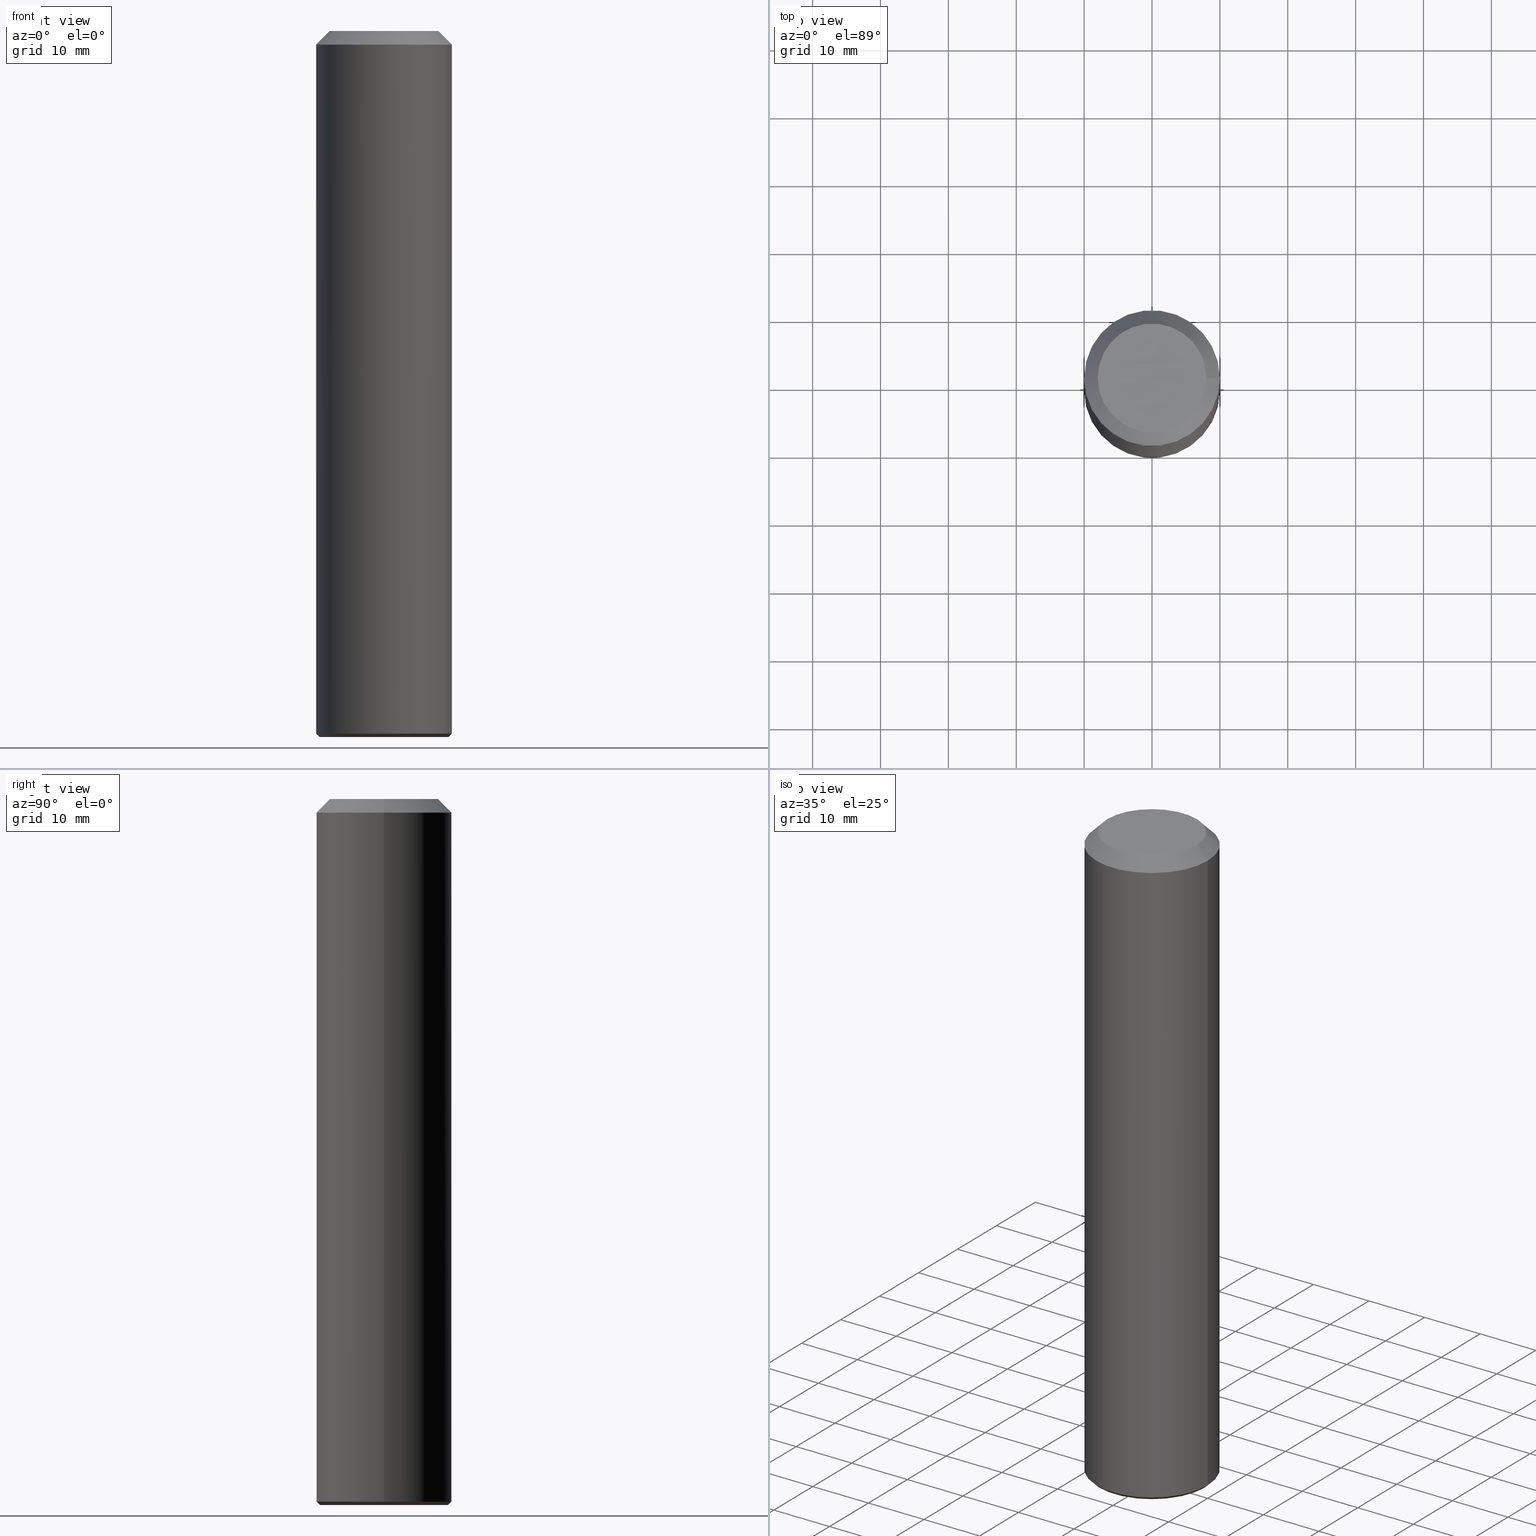
[diagram: canonical four-view strip — front | top / right | iso, engineering-drawing reading convention]
A machine part, canonical four-view strip (front | top / right | iso — engineering-drawing reading convention). The complete STEP part file that produces these views, byte-faithful:
ISO-10303-21;
HEADER;
FILE_DESCRIPTION (( 'STEP AP203' ),
    '1' );
FILE_NAME ('735.200.00.STEP',
    '2019-01-08T23:45:43',
    ( '' ),
    ( '' ),
    'SwSTEP 2.0',
    'SolidWorks 2019',
    '' );
FILE_SCHEMA (( 'CONFIG_CONTROL_DESIGN' ));
ENDSEC;

DATA;
#1 = ORIENTED_EDGE ( 'NONE', *, *, #77, .T. ) ;
#2 = DESIGN_CONTEXT ( 'detailed design', #16, 'design' ) ;
#3 = ORIENTED_EDGE ( 'NONE', *, *, #176, .T. ) ;
#4 = PERSON_AND_ORGANIZATION_ROLE ( 'classification_officer' ) ;
#5 = FACE_OUTER_BOUND ( 'NONE', #179, .T. ) ;
#6 = DATE_AND_TIME ( #35, #101 ) ;
#7 = CARTESIAN_POINT ( 'NONE',  ( 0.0000000000000000000, 0.0000000000000000000, 0.0000000000000000000 ) ) ;
#8 = CIRCLE ( 'NONE', #45, 9.499999999999994671 ) ;
#9 = DIRECTION ( 'NONE',  ( -7.337712398762083409E-15, 0.0000000000000000000, -1.000000000000000000 ) ) ;
#10 = FACE_OUTER_BOUND ( 'NONE', #208, .T. ) ;
#11 = ADVANCED_FACE ( 'NONE', ( #215, #202 ), #139, .T. ) ;
#12 = EDGE_CURVE ( 'NONE', #137, #137, #170, .T. ) ;
#13 = PERSON_AND_ORGANIZATION_ROLE ( 'creator' ) ;
#14 = CARTESIAN_POINT ( 'NONE',  ( 7.999999999999992895, 0.0000000000000000000, -5.586370142149008320E-14 ) ) ;
#15 = CARTESIAN_POINT ( 'NONE',  ( -9.500000000000733635, 0.0000000000000000000, -103.9999999999999289 ) ) ;
#16 = APPLICATION_CONTEXT ( 'configuration controlled 3d designs of mechanical parts and assemblies' ) ;
#17 = AXIS2_PLACEMENT_3D ( 'NONE', #38, #196, #204 ) ;
#18 = EDGE_LOOP ( 'NONE', ( #141 ) ) ;
#19 = ORIENTED_EDGE ( 'NONE', *, *, #175, .T. ) ;
#20 = EDGE_LOOP ( 'NONE', ( #89 ) ) ;
#21 = AXIS2_PLACEMENT_3D ( 'NONE', #112, #44, #79 ) ;
#22 = CC_DESIGN_PERSON_AND_ORGANIZATION_ASSIGNMENT ( #122, #13, ( #205 ) ) ;
#23 = EDGE_LOOP ( 'NONE', ( #181 ) ) ;
#24 = FACE_OUTER_BOUND ( 'NONE', #109, .T. ) ;
#25 = COORDINATED_UNIVERSAL_TIME_OFFSET ( 1, 0, .AHEAD. ) ;
#26 = DIRECTION ( 'NONE',  ( -6.982962677686267499E-15, -0.0000000000000000000, -1.000000000000000000 ) ) ;
#27 = PRODUCT_DEFINITION_SHAPE ( 'NONE', 'NONE',  #205 ) ;
#28 = DIRECTION ( 'NONE',  ( 6.982962677686266711E-15, 0.0000000000000000000, 1.000000000000000000 ) ) ;
#29 = DIRECTION ( 'NONE',  ( 6.982962677686266711E-15, 0.0000000000000000000, 1.000000000000000000 ) ) ;
#30 = FACE_OUTER_BOUND ( 'NONE', #49, .T. ) ;
#31 = ADVANCED_FACE ( 'NONE', ( #10 ), #167, .T. ) ;
#32 = VERTEX_POINT ( 'NONE', #14 ) ;
#33 = AXIS2_PLACEMENT_3D ( 'NONE', #110, #131, #75 ) ;
#34 = DATE_AND_TIME ( #46, #140 ) ;
#35 = CALENDAR_DATE ( 2019, 9, 1 ) ;
#36 = COORDINATED_UNIVERSAL_TIME_OFFSET ( 1, 0, .AHEAD. ) ;
#37 = ADVANCED_FACE ( 'NONE', ( #64 ), #42, .T. ) ;
#38 = CARTESIAN_POINT ( 'NONE',  ( -7.396592199242181741E-13, 0.0000000000000000000, -104.0000000000000000 ) ) ;
#39 = PERSON_AND_ORGANIZATION_ROLE ( 'design_owner' ) ;
#40 = APPROVAL_STATUS ( 'not_yet_approved' ) ;
#41 = FACE_BOUND ( 'NONE', #23, .T. ) ;
#42 = PLANE ( 'NONE',  #65 ) ;
#43 = DIRECTION ( 'NONE',  ( -1.000000000000000000, 0.0000000000000000000, 7.304098846218139203E-15 ) ) ;
#44 = DIRECTION ( 'NONE',  ( 7.102166654756253620E-15, -0.0000000000000000000, 1.000000000000000000 ) ) ;
#45 = AXIS2_PLACEMENT_3D ( 'NONE', #66, #203, #43 ) ;
#46 = CALENDAR_DATE ( 2019, 9, 1 ) ;
#47 = AXIS2_PLACEMENT_3D ( 'NONE', #7, #76, #62 ) ;
#48 = CC_DESIGN_APPROVAL ( #120, ( #171 ) ) ;
#49 = EDGE_LOOP ( 'NONE', ( #211 ) ) ;
#50 = ADVANCED_FACE ( 'NONE', ( #186, #150 ), #129, .T. ) ;
#51 = PRODUCT_RELATED_PRODUCT_CATEGORY ( 'detail', '', ( #61 ) ) ;
#52 = CARTESIAN_POINT ( 'NONE',  ( 0.0000000000000000000, 0.0000000000000000000, 0.0000000000000000000 ) ) ;
#53 = ORIENTED_EDGE ( 'NONE', *, *, #158, .F. ) ;
#54 = CLOSED_SHELL ( 'NONE', ( #190, #188, #11, #138 ) ) ;
#55 = ORIENTED_EDGE ( 'NONE', *, *, #176, .F. ) ;
#56 = ORIENTED_EDGE ( 'NONE', *, *, #158, .T. ) ;
#57 = CIRCLE ( 'NONE', #74, 7.999999999999992895 ) ;
#58 = PERSON_AND_ORGANIZATION ( #63, #78 ) ;
#59 = CARTESIAN_POINT ( 'NONE',  ( -4.608755367272936534E-13, 0.0000000000000000000, -66.00000000000000000 ) ) ;
#60 = APPROVAL_STATUS ( 'not_yet_approved' ) ;
#61 = PRODUCT ( '735.200.00', '735.200.00', '', ( #72 ) ) ;
#62 = DIRECTION ( 'NONE',  ( -1.000000000000000000, 0.0000000000000000000, 6.982962677686266711E-15 ) ) ;
#63 = PERSON ( 'UNSPECIFIED', 'UNSPECIFIED', 'UNSPECIFIED', ('UNSPECIFIED'), ('UNSPECIFIED'), ('UNSPECIFIED') ) ;
#64 = FACE_OUTER_BOUND ( 'NONE', #20, .T. ) ;
#65 = AXIS2_PLACEMENT_3D ( 'NONE', #152, #115, #165 ) ;
#66 = CARTESIAN_POINT ( 'NONE',  ( -7.396592199242181741E-13, 0.0000000000000000000, -104.0000000000000000 ) ) ;
#67 = APPROVAL_DATE_TIME ( #91, #198 ) ;
#68 = ADVANCED_FACE ( 'NONE', ( #95, #41 ), #194, .T. ) ;
#69 = DIRECTION ( 'NONE',  ( 1.000000000000000000, 0.0000000000000000000, -6.938893903907228378E-15 ) ) ;
#70 = CC_DESIGN_SECURITY_CLASSIFICATION ( #98, ( #171 ) ) ;
#71 = CALENDAR_DATE ( 2019, 9, 1 ) ;
#72 = MECHANICAL_CONTEXT ( 'NONE', #87, 'mechanical' ) ;
#73 = ORIENTED_EDGE ( 'NONE', *, *, #77, .F. ) ;
#74 = AXIS2_PLACEMENT_3D ( 'NONE', #117, #29, #96 ) ;
#75 = DIRECTION ( 'NONE',  ( 1.000000000000000000, 0.0000000000000000000, -6.982962677686266711E-15 ) ) ;
#76 = DIRECTION ( 'NONE',  ( -6.982962677686266711E-15, 0.0000000000000000000, -1.000000000000000000 ) ) ;
#77 = EDGE_CURVE ( 'NONE', #173, #173, #97, .T. ) ;
#78 = ORGANIZATION ( 'UNSPECIFIED', 'UNSPECIFIED', '' ) ;
#79 = DIRECTION ( 'NONE',  ( 1.000000000000000000, 0.0000000000000000000, -7.102166654756253620E-15 ) ) ;
#80 = CLOSED_SHELL ( 'NONE', ( #50, #31, #68, #37 ) ) ;
#81 = VERTEX_POINT ( 'NONE', #82 ) ;
#82 = CARTESIAN_POINT ( 'NONE',  ( 9.999999999999538147, 0.0000000000000000000, -66.00000000000007105 ) ) ;
#83 =( LENGTH_UNIT ( ) NAMED_UNIT ( * ) SI_UNIT ( .MILLI., .METRE. ) );
#84 = PERSON_AND_ORGANIZATION ( #63, #78 ) ;
#85 = LOCAL_TIME ( 0, 45, 43.00000000000000000, #183 ) ;
#86 = EDGE_LOOP ( 'NONE', ( #53 ) ) ;
#87 = APPLICATION_CONTEXT ( 'configuration controlled 3d designs of mechanical parts and assemblies' ) ;
#88 = ORIENTED_EDGE ( 'NONE', *, *, #100, .F. ) ;
#89 = ORIENTED_EDGE ( 'NONE', *, *, #12, .T. ) ;
#90 = APPROVAL_ROLE ( '' ) ;
#91 = DATE_AND_TIME ( #151, #166 ) ;
#92 = APPLICATION_PROTOCOL_DEFINITION ( 'international standard', 'config_control_design', 1994, #16 ) ;
#93 = DIRECTION ( 'NONE',  ( 1.000000000000000000, 0.0000000000000000000, -6.938893903907228378E-15 ) ) ;
#94 = DATE_TIME_ROLE ( 'classification_date' ) ;
#95 = FACE_OUTER_BOUND ( 'NONE', #192, .T. ) ;
#96 = DIRECTION ( 'NONE',  ( 1.000000000000000000, 0.0000000000000000000, -6.982962677686266711E-15 ) ) ;
#97 = CIRCLE ( 'NONE', #145, 10.00000000000000533 ) ;
#98 = SECURITY_CLASSIFICATION ( '', '', #164 ) ;
#99 = DIRECTION ( 'NONE',  ( -6.982962677686267499E-15, -0.0000000000000000000, -1.000000000000000000 ) ) ;
#100 = EDGE_CURVE ( 'NONE', #220, #220, #8, .T. ) ;
#101 = LOCAL_TIME ( 0, 45, 43.00000000000000000, #36 ) ;
#102 = DIRECTION ( 'NONE',  ( 0.0000000000000000000, 0.0000000000000000000, 1.000000000000000000 ) ) ;
#103 = VERTEX_POINT ( 'NONE', #206 ) ;
#104 = COORDINATED_UNIVERSAL_TIME_OFFSET ( 1, 0, .AHEAD. ) ;
#105 = AXIS2_PLACEMENT_3D ( 'NONE', #191, #157, #154 ) ;
#106 = EDGE_LOOP ( 'NONE', ( #88 ) ) ;
#107 = CC_DESIGN_APPROVAL ( #159, ( #205 ) ) ;
#108 = DATE_AND_TIME ( #207, #168 ) ;
#109 = EDGE_LOOP ( 'NONE', ( #73 ) ) ;
#110 = CARTESIAN_POINT ( 'NONE',  ( -3.326488793394202502E-30, 0.0000000000000000000, -4.763721284124635757E-16 ) ) ;
#111 = APPROVAL_ROLE ( '' ) ;
#112 = CARTESIAN_POINT ( 'NONE',  ( -7.396592199242181741E-13, 0.0000000000000000000, -104.0000000000000000 ) ) ;
#113 = COORDINATED_UNIVERSAL_TIME_OFFSET ( 1, 0, .AHEAD. ) ;
#114 = APPROVAL_PERSON_ORGANIZATION ( #126, #159, #90 ) ;
#115 = DIRECTION ( 'NONE',  ( -6.982962677686266711E-15, 0.0000000000000000000, -1.000000000000000000 ) ) ;
#116 = DIRECTION ( 'NONE',  ( 6.982962677686266711E-15, 0.0000000000000000000, 1.000000000000000000 ) ) ;
#117 = CARTESIAN_POINT ( 'NONE',  ( 0.0000000000000000000, 0.0000000000000000000, 0.0000000000000000000 ) ) ;
#118 = AXIS2_PLACEMENT_3D ( 'NONE', #214, #128, #133 ) ;
#119 = CC_DESIGN_DATE_AND_TIME_ASSIGNMENT ( #108, #148, ( #205 ) ) ;
#120 = APPROVAL ( #40, 'UNSPECIFIED' ) ;
#121 = AXIS2_PLACEMENT_3D ( 'NONE', #200, #28, #69 ) ;
#122 = PERSON_AND_ORGANIZATION ( #63, #78 ) ;
#123 = DIRECTION ( 'NONE',  ( 1.000000000000000000, 0.0000000000000000000, 0.0000000000000000000 ) ) ;
#124 = EDGE_LOOP ( 'NONE', ( #1 ) ) ;
#125 = PERSON_AND_ORGANIZATION_ROLE ( 'creator' ) ;
#126 = PERSON_AND_ORGANIZATION ( #63, #78 ) ;
#127 = CIRCLE ( 'NONE', #184, 10.00000000000000000 ) ;
#128 = DIRECTION ( 'NONE',  ( 6.982962677686266711E-15, 0.0000000000000000000, 1.000000000000000000 ) ) ;
#129 = CYLINDRICAL_SURFACE ( 'NONE', #121, 10.00000000000000000 ) ;
#130 = SHAPE_DEFINITION_REPRESENTATION ( #27, #162 ) ;
#131 = DIRECTION ( 'NONE',  ( 6.982962677686266711E-15, 0.0000000000000000000, 1.000000000000000000 ) ) ;
#132 = CC_DESIGN_PERSON_AND_ORGANIZATION_ASSIGNMENT ( #209, #174, ( #171 ) ) ;
#133 = DIRECTION ( 'NONE',  ( 1.000000000000000000, 0.0000000000000000000, -6.938893903907228378E-15 ) ) ;
#134 = APPROVAL_DATE_TIME ( #34, #159 ) ;
#135 = FACE_OUTER_BOUND ( 'NONE', #163, .T. ) ;
#136 = DATE_AND_TIME ( #71, #85 ) ;
#137 = VERTEX_POINT ( 'NONE', #172 ) ;
#138 = ADVANCED_FACE ( 'NONE', ( #30 ), #146, .F. ) ;
#139 = CONICAL_SURFACE ( 'NONE', #17, 9.499999999999994671, 0.7853981633974447263 ) ;
#140 = LOCAL_TIME ( 0, 45, 43.00000000000000000, #113 ) ;
#141 = ORIENTED_EDGE ( 'NONE', *, *, #12, .F. ) ;
#142 = APPROVAL_DATE_TIME ( #136, #120 ) ;
#143 = MANIFOLD_SOLID_BREP ( 'K�rper in Z minus drehen[1]', #54 ) ;
#144 = CC_DESIGN_DATE_AND_TIME_ASSIGNMENT ( #6, #94, ( #98 ) ) ;
#145 = AXIS2_PLACEMENT_3D ( 'NONE', #169, #9, #217 ) ;
#146 = PLANE ( 'NONE',  #21 ) ;
#147 = AXIS2_PLACEMENT_3D ( 'NONE', #59, #26, #93 ) ;
#148 = DATE_TIME_ROLE ( 'creation_date' ) ;
#149 = CYLINDRICAL_SURFACE ( 'NONE', #118, 10.00000000000000000 ) ;
#150 = FACE_OUTER_BOUND ( 'NONE', #86, .T. ) ;
#151 = CALENDAR_DATE ( 2019, 9, 1 ) ;
#152 = CARTESIAN_POINT ( 'NONE',  ( -4.608755367272936534E-13, 0.0000000000000000000, -66.00000000000000000 ) ) ;
#153 = CC_DESIGN_PERSON_AND_ORGANIZATION_ASSIGNMENT ( #223, #125, ( #171 ) ) ;
#154 = DIRECTION ( 'NONE',  ( -1.000000000000000000, 0.0000000000000000000, 6.982962677686266711E-15 ) ) ;
#155 = CIRCLE ( 'NONE', #178, 10.00000000000000000 ) ;
#156 = CARTESIAN_POINT ( 'NONE',  ( -10.00000000000074074, 0.0000000000000000000, -103.4999999999999147 ) ) ;
#157 = DIRECTION ( 'NONE',  ( -6.982962677686266711E-15, 0.0000000000000000000, -1.000000000000000000 ) ) ;
#158 = EDGE_CURVE ( 'NONE', #103, #103, #155, .T. ) ;
#159 = APPROVAL ( #193, 'UNSPECIFIED' ) ;
#160 = APPROVAL_PERSON_ORGANIZATION ( #201, #198, #197 ) ;
#161 = PERSON_AND_ORGANIZATION ( #63, #78 ) ;
#162 = ADVANCED_BREP_SHAPE_REPRESENTATION ( '735.200.00', ( #143, #216, #177 ), #210 ) ;
#163 = EDGE_LOOP ( 'NONE', ( #55 ) ) ;
#164 = SECURITY_CLASSIFICATION_LEVEL ( 'unclassified' ) ;
#165 = DIRECTION ( 'NONE',  ( -1.000000000000000000, 0.0000000000000000000, 6.982962677686266711E-15 ) ) ;
#166 = LOCAL_TIME ( 0, 45, 43.00000000000000000, #25 ) ;
#167 = PLANE ( 'NONE',  #33 ) ;
#168 = LOCAL_TIME ( 0, 45, 43.00000000000000000, #104 ) ;
#169 = CARTESIAN_POINT ( 'NONE',  ( -7.359903637248369730E-13, 0.0000000000000000000, -103.4999999999999858 ) ) ;
#170 = CIRCLE ( 'NONE', #147, 10.00000000000000000 ) ;
#171 = PRODUCT_DEFINITION_FORMATION_WITH_SPECIFIED_SOURCE ( 'ANY', '', #61, .NOT_KNOWN. ) ;
#172 = CARTESIAN_POINT ( 'NONE',  ( 9.999999999999538147, 0.0000000000000000000, -66.00000000000007105 ) ) ;
#173 = VERTEX_POINT ( 'NONE', #156 ) ;
#174 = PERSON_AND_ORGANIZATION_ROLE ( 'design_supplier' ) ;
#175 = EDGE_CURVE ( 'NONE', #32, #32, #57, .T. ) ;
#176 = EDGE_CURVE ( 'NONE', #81, #81, #127, .T. ) ;
#177 = AXIS2_PLACEMENT_3D ( 'NONE', #52, #102, #123 ) ;
#178 = AXIS2_PLACEMENT_3D ( 'NONE', #213, #116, #187 ) ;
#179 = EDGE_LOOP ( 'NONE', ( #3 ) ) ;
#180 =( NAMED_UNIT ( * ) SI_UNIT ( $, .STERADIAN. ) SOLID_ANGLE_UNIT ( ) );
#181 = ORIENTED_EDGE ( 'NONE', *, *, #175, .F. ) ;
#182 = DIRECTION ( 'NONE',  ( 1.000000000000000000, 0.0000000000000000000, -6.938893903907228378E-15 ) ) ;
#183 = COORDINATED_UNIVERSAL_TIME_OFFSET ( 1, 0, .AHEAD. ) ;
#184 = AXIS2_PLACEMENT_3D ( 'NONE', #189, #99, #182 ) ;
#185 = CC_DESIGN_APPROVAL ( #198, ( #98 ) ) ;
#186 = FACE_OUTER_BOUND ( 'NONE', #18, .T. ) ;
#187 = DIRECTION ( 'NONE',  ( 1.000000000000000000, 0.0000000000000000000, -6.982261990806648555E-15 ) ) ;
#188 = ADVANCED_FACE ( 'NONE', ( #24, #5 ), #149, .T. ) ;
#189 = CARTESIAN_POINT ( 'NONE',  ( -4.608755367272936534E-13, 0.0000000000000000000, -66.00000000000000000 ) ) ;
#190 = ADVANCED_FACE ( 'NONE', ( #135 ), #222, .F. ) ;
#191 = CARTESIAN_POINT ( 'NONE',  ( -4.608755367272936534E-13, 0.0000000000000000000, -66.00000000000000000 ) ) ;
#192 = EDGE_LOOP ( 'NONE', ( #56 ) ) ;
#193 = APPROVAL_STATUS ( 'not_yet_approved' ) ;
#194 = CONICAL_SURFACE ( 'NONE', #47, 7.999999999999992895, 0.7853981633974496113 ) ;
#195 = APPROVAL_PERSON_ORGANIZATION ( #58, #120, #111 ) ;
#196 = DIRECTION ( 'NONE',  ( 7.337712398762083409E-15, 0.0000000000000000000, 1.000000000000000000 ) ) ;
#197 = APPROVAL_ROLE ( '' ) ;
#198 = APPROVAL ( #60, 'UNSPECIFIED' ) ;
#199 = CC_DESIGN_PERSON_AND_ORGANIZATION_ASSIGNMENT ( #161, #39, ( #61 ) ) ;
#200 = CARTESIAN_POINT ( 'NONE',  ( -7.262281184793717379E-13, 0.0000000000000000000, -104.0000000000000000 ) ) ;
#201 = PERSON_AND_ORGANIZATION ( #63, #78 ) ;
#202 = FACE_BOUND ( 'NONE', #106, .T. ) ;
#203 = DIRECTION ( 'NONE',  ( -7.337712398762083409E-15, 0.0000000000000000000, -1.000000000000000000 ) ) ;
#204 = DIRECTION ( 'NONE',  ( 1.000000000000000000, 0.0000000000000000000, -7.304098846218139203E-15 ) ) ;
#205 = PRODUCT_DEFINITION ( 'UNKNOWN', '', #171, #2 ) ;
#206 = CARTESIAN_POINT ( 'NONE',  ( 9.999999999999985789, 0.0000000000000000000, -2.000000000000071498 ) ) ;
#207 = CALENDAR_DATE ( 2019, 9, 1 ) ;
#208 = EDGE_LOOP ( 'NONE', ( #19 ) ) ;
#209 = PERSON_AND_ORGANIZATION ( #63, #78 ) ;
#210 =( GEOMETRIC_REPRESENTATION_CONTEXT ( 3 ) GLOBAL_UNCERTAINTY_ASSIGNED_CONTEXT ( ( #212 ) ) GLOBAL_UNIT_ASSIGNED_CONTEXT ( ( #83, #221, #180 ) ) REPRESENTATION_CONTEXT ( 'NONE', 'WORKASPACE' ) );
#211 = ORIENTED_EDGE ( 'NONE', *, *, #100, .T. ) ;
#212 = UNCERTAINTY_MEASURE_WITH_UNIT (LENGTH_MEASURE( 1.000000000000000082E-05 ), #83, 'distance_accuracy_value', 'NONE');
#213 = CARTESIAN_POINT ( 'NONE',  ( -1.396592535537254604E-14, 0.0000000000000000000, -2.000000000000001776 ) ) ;
#214 = CARTESIAN_POINT ( 'NONE',  ( -7.262281184793717379E-13, 0.0000000000000000000, -104.0000000000000000 ) ) ;
#215 = FACE_OUTER_BOUND ( 'NONE', #124, .T. ) ;
#216 = MANIFOLD_SOLID_BREP ( 'K�rper in Z minus drehen[2]', #80 ) ;
#217 = DIRECTION ( 'NONE',  ( -1.000000000000000000, 0.0000000000000000000, 6.938893903907224433E-15 ) ) ;
#218 = APPLICATION_PROTOCOL_DEFINITION ( 'international standard', 'config_control_design', 1994, #87 ) ;
#219 = CC_DESIGN_PERSON_AND_ORGANIZATION_ASSIGNMENT ( #84, #4, ( #98 ) ) ;
#220 = VERTEX_POINT ( 'NONE', #15 ) ;
#221 =( NAMED_UNIT ( * ) PLANE_ANGLE_UNIT ( ) SI_UNIT ( $, .RADIAN. ) );
#222 = PLANE ( 'NONE',  #105 ) ;
#223 = PERSON_AND_ORGANIZATION ( #63, #78 ) ;
ENDSEC;
END-ISO-10303-21;
15427